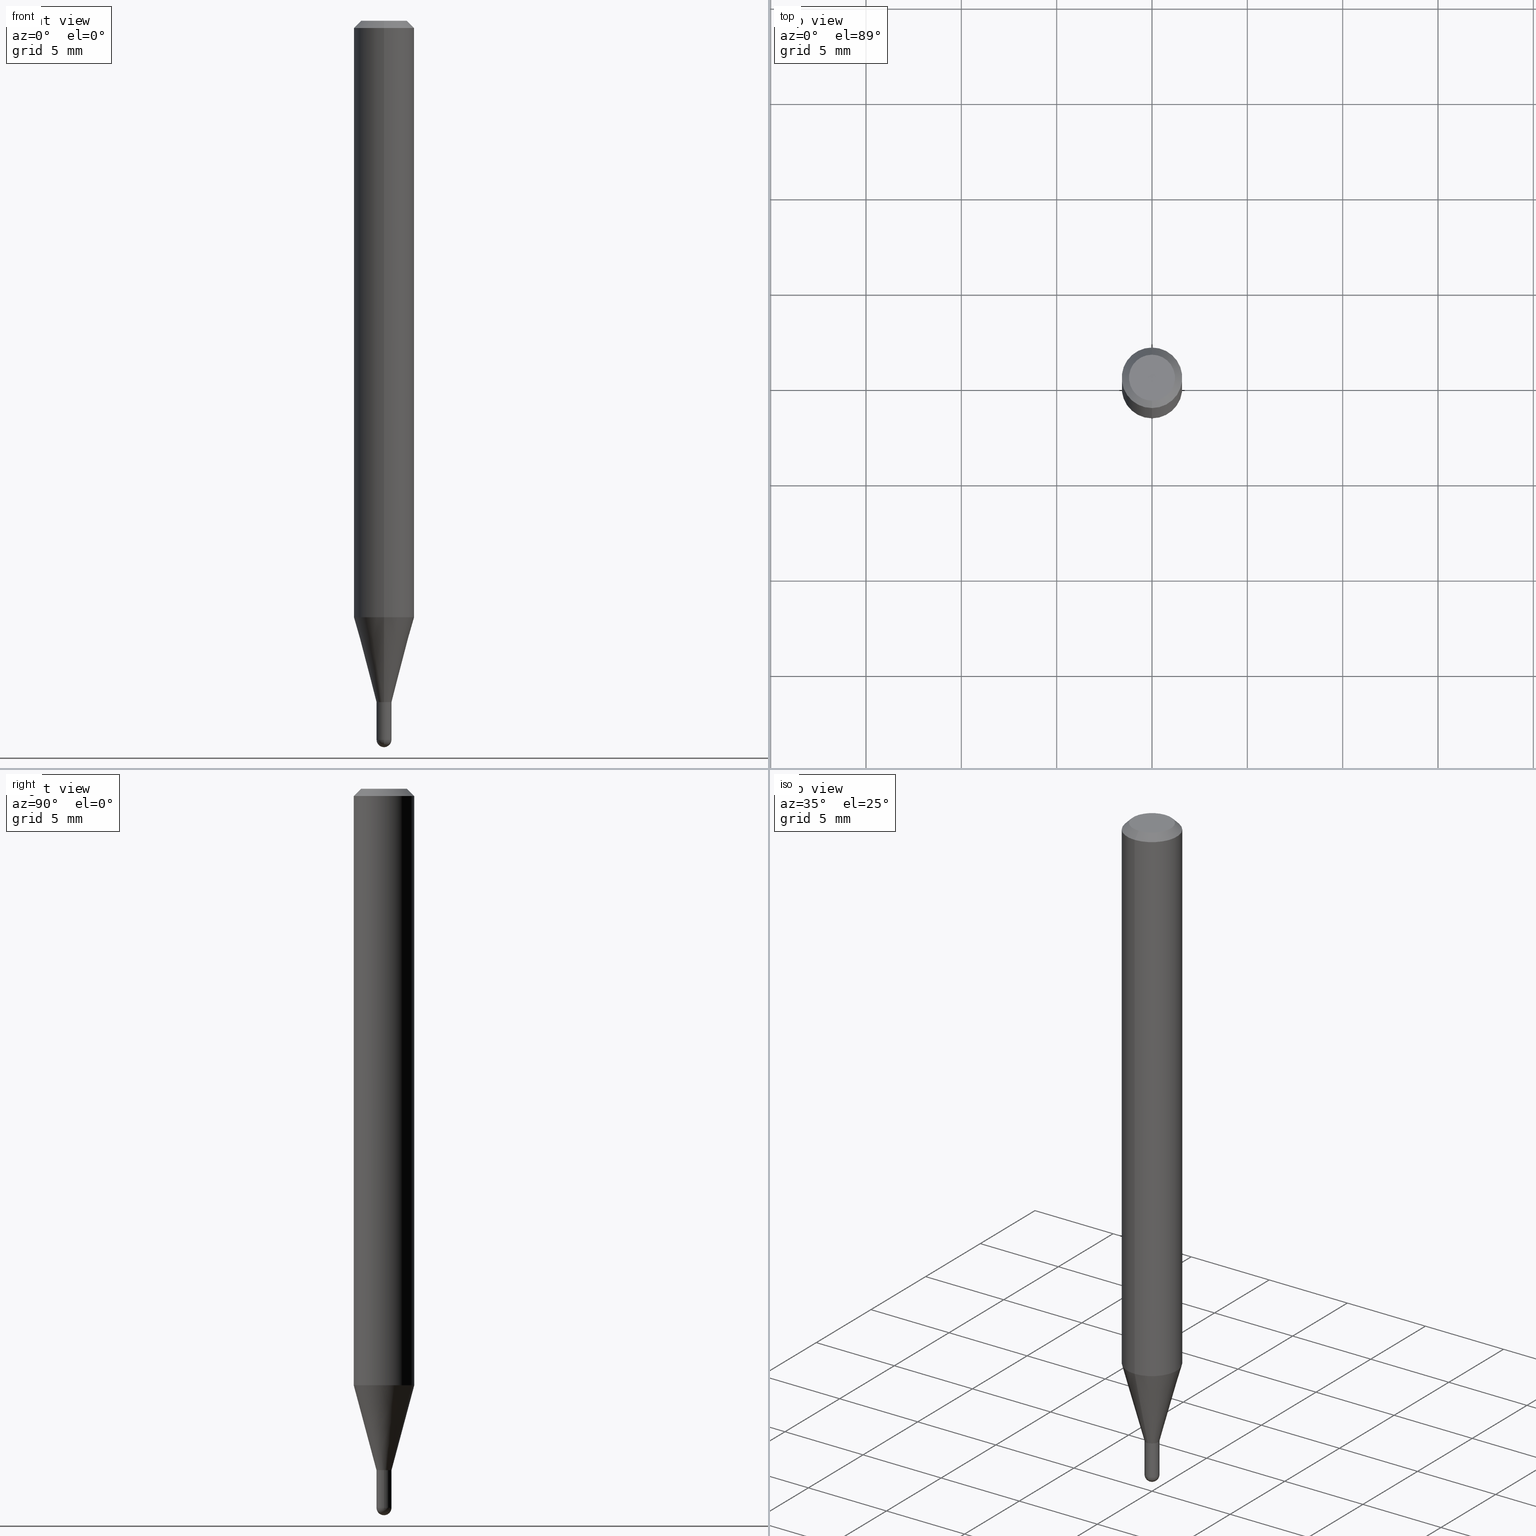
[diagram: canonical four-view strip — front | top / right | iso, engineering-drawing reading convention]
A machine part, canonical four-view strip (front | top / right | iso — engineering-drawing reading convention). The complete STEP part file that produces these views, byte-faithful:
ISO-10303-21;
HEADER;
FILE_DESCRIPTION (( 'STEP AP203' ),
    '1' );
FILE_NAME ('04409.STEP',
    '2024-03-08T19:15:48',
    ( '' ),
    ( '' ),
    'SwSTEP 2.0',
    'SolidWorks 2023',
    '' );
FILE_SCHEMA (( 'CONFIG_CONTROL_DESIGN' ));
ENDSEC;

DATA;
#1 = EDGE_CURVE ( 'NONE', #258, #51, #279, .T. ) ;
#2 = LINE ( 'NONE', #372, #64 ) ;
#3 = UNCERTAINTY_MEASURE_WITH_UNIT (LENGTH_MEASURE( 1.000000000000000082E-05 ), #33, 'distance_accuracy_value', 'NONE');
#4 = APPLICATION_PROTOCOL_DEFINITION ( 'international standard', 'config_control_design', 1994, #39 ) ;
#5 = CIRCLE ( 'NONE', #308, 0.01549999999999999989 ) ;
#6 = DIRECTION ( 'NONE',  ( -2.445473868561533157E-29, 3.491474089232013110E-15, 1.000000000000000000 ) ) ;
#7 = AXIS2_PLACEMENT_3D ( 'NONE', #334, #289, #330 ) ;
#8 = ORIENTED_EDGE ( 'NONE', *, *, #49, .F. ) ;
#9 = MANIFOLD_SOLID_BREP ( 'Body-Move/Copy2[2]', #504 ) ;
#10 = DIRECTION ( 'NONE',  ( -6.982962677686265922E-15, -1.000000000000000000, 0.000000000000000000 ) ) ;
#11 = DIRECTION ( 'NONE',  ( -2.445473868561533157E-29, 3.491474089232013110E-15, 1.000000000000000000 ) ) ;
#12 = ORIENTED_EDGE ( 'NONE', *, *, #286, .F. ) ;
#13 = EDGE_LOOP ( 'NONE', ( #150, #259, #301, #445, #158 ) ) ;
#14 = ORIENTED_EDGE ( 'NONE', *, *, #412, .F. ) ;
#15 = EDGE_CURVE ( 'NONE', #281, #214, #443, .T. ) ;
#16 = CIRCLE ( 'NONE', #436, 0.06250000000000000000 ) ;
#17 = DIRECTION ( 'NONE',  ( -2.445468806185136877E-29, 3.491481338843145188E-15, 1.000000000000000000 ) ) ;
#18 = VERTEX_POINT ( 'NONE', #293 ) ;
#19 = EDGE_CURVE ( 'NONE', #480, #134, #2, .T. ) ;
#20 = CALENDAR_DATE ( 2024, 8, 3 ) ;
#21 = VECTOR ( 'NONE', #163, 39.37007874015748143 ) ;
#22 = CARTESIAN_POINT ( 'NONE',  ( 1.082359215041715180E-16, 0.01549999999999508715, -1.407000000000000028 ) ) ;
#23 = DIRECTION ( 'NONE',  ( -2.445473868561533157E-29, 3.491474089232013110E-15, 1.000000000000000000 ) ) ;
#24 = DIRECTION ( 'NONE',  ( -6.982962677686265922E-15, -1.000000000000000000, 3.491474089232012716E-15 ) ) ;
#25 = LOCAL_TIME ( 14, 15, 48.00000000000000000, #152 ) ;
#26 = FACE_OUTER_BOUND ( 'NONE', #147, .T. ) ;
#27 = ORIENTED_EDGE ( 'NONE', *, *, #94, .F. ) ;
#28 = FACE_OUTER_BOUND ( 'NONE', #41, .T. ) ;
#29 = FACE_OUTER_BOUND ( 'NONE', #287, .T. ) ;
#30 = DIRECTION ( 'NONE',  ( -2.445473868561533157E-29, 3.491474089232013110E-15, 1.000000000000000000 ) ) ;
#31 = ADVANCED_FACE ( 'NONE', ( #166 ), #40, .T. ) ;
#32 = DATE_TIME_ROLE ( 'creation_date' ) ;
#33 =( CONVERSION_BASED_UNIT ( 'INCH', #118 ) LENGTH_UNIT ( ) NAMED_UNIT ( #345 ) );
#34 = DIRECTION ( 'NONE',  ( -1.000000000000000000, 6.982962677686265922E-15, -4.883557194083112340E-29 ) ) ;
#35 = CARTESIAN_POINT ( 'NONE',  ( 1.101341240428470701E-16, 0.01549999999999468643, -1.406500000000000083 ) ) ;
#36 = CC_DESIGN_DATE_AND_TIME_ASSIGNMENT ( #265, #32, ( #421 ) ) ;
#37 = LINE ( 'NONE', #120, #142 ) ;
#38 = CARTESIAN_POINT ( 'NONE',  ( 4.440892098500924943E-16, 0.06249999999999567707, -1.231593612044269426 ) ) ;
#39 = APPLICATION_CONTEXT ( 'configuration controlled 3d designs of mechanical parts and assemblies' ) ;
#40 = SPHERICAL_SURFACE ( 'NONE', #43, 0.01549999999999993917 ) ;
#41 = EDGE_LOOP ( 'NONE', ( #58, #222, #92, #90 ) ) ;
#42 = AXIS2_PLACEMENT_3D ( 'NONE', #83, #6, #338 ) ;
#43 = AXIS2_PLACEMENT_3D ( 'NONE', #357, #373, #368 ) ;
#44 = CARTESIAN_POINT ( 'NONE',  ( 0.01549999999999999989, -5.156045067136614711E-15, -1.484500000000000597 ) ) ;
#45 = APPROVAL_STATUS ( 'not_yet_approved' ) ;
#46 = DIRECTION ( 'NONE',  ( -4.937700262161976356E-15, -0.7071067811861768693, 0.7071067811869181652 ) ) ;
#47 = ORIENTED_EDGE ( 'NONE', *, *, #137, .F. ) ;
#48 = DESIGN_CONTEXT ( 'detailed design', #228, 'design' ) ;
#49 = EDGE_CURVE ( 'NONE', #383, #196, #364, .T. ) ;
#50 = CARTESIAN_POINT ( 'NONE',  ( 0.01549999999999999989, -1.082359215041371286E-16, 7.558074002483699918E-31 ) ) ;
#51 = VERTEX_POINT ( 'NONE', #198 ) ;
#52 = ORIENTED_EDGE ( 'NONE', *, *, #510, .F. ) ;
#53 = CONICAL_SURFACE ( 'NONE', #263, 0.06250000000000000000, 0.7853981633974483900 ) ;
#54 = CARTESIAN_POINT ( 'NONE',  ( -0.01549999999999999989, 1.101341240428155280E-16, -7.624349389895103058E-31 ) ) ;
#55 = CARTESIAN_POINT ( 'NONE',  ( 3.840629472727447874E-16, 0.04749999999999999362, -2.313455976474456035E-16 ) ) ;
#56 = ORIENTED_EDGE ( 'NONE', *, *, #312, .F. ) ;
#57 = ORIENTED_EDGE ( 'NONE', *, *, #393, .F. ) ;
#58 = ORIENTED_EDGE ( 'NONE', *, *, #218, .F. ) ;
#59 = PERSON_AND_ORGANIZATION ( #386, #105 ) ;
#60 = ADVANCED_FACE ( 'NONE', ( #242 ), #432, .T. ) ;
#61 = CC_DESIGN_PERSON_AND_ORGANIZATION_ASSIGNMENT ( #305, #236, ( #264 ) ) ;
#62 = DATE_AND_TIME ( #419, #114 ) ;
#63 = PERSON_AND_ORGANIZATION_ROLE ( 'creator' ) ;
#64 = VECTOR ( 'NONE', #30, 39.37007874015748143 ) ;
#65 = VECTOR ( 'NONE', #46, 39.37007874015748143 ) ;
#66 = CC_DESIGN_APPROVAL ( #241, ( #264 ) ) ;
#67 = SECURITY_CLASSIFICATION_LEVEL ( 'unclassified' ) ;
#68 = EDGE_CURVE ( 'NONE', #480, #490, #37, .T. ) ;
#69 = FACE_OUTER_BOUND ( 'NONE', #276, .T. ) ;
#70 = DIRECTION ( 'NONE',  ( 1.000000000000000000, -7.105427357601001070E-15, 4.926315508542082329E-29 ) ) ;
#71 = PLANE ( 'NONE',  #186 ) ;
#72 = AXIS2_PLACEMENT_3D ( 'NONE', #278, #429, #298 ) ;
#73 = DIRECTION ( 'NONE',  ( -2.445473868561533157E-29, 3.491474089232013110E-15, 1.000000000000000000 ) ) ;
#74 = PERSON_AND_ORGANIZATION ( #386, #105 ) ;
#75 = DIRECTION ( 'NONE',  ( 6.982962677686265922E-15, 1.000000000000000000, -3.483106191921935554E-15 ) ) ;
#76 = DIRECTION ( 'NONE',  ( -2.445468806185136597E-29, 3.491481338843145583E-15, 1.000000000000000000 ) ) ;
#77 = DIRECTION ( 'NONE',  ( -2.445473868561533157E-29, 3.491474089232013110E-15, 1.000000000000000000 ) ) ;
#78 = DIRECTION ( 'NONE',  ( -2.445473868561533157E-29, 3.491474089232013110E-15, 1.000000000000000000 ) ) ;
#79 = VECTOR ( 'NONE', #501, 39.37007874015748143 ) ;
#80 = EDGE_CURVE ( 'NONE', #347, #91, #131, .T. ) ;
#81 = PRODUCT_DEFINITION_FORMATION_WITH_SPECIFIED_SOURCE ( 'ANY', '', #103, .NOT_KNOWN. ) ;
#82 = ORIENTED_EDGE ( 'NONE', *, *, #266, .F. ) ;
#83 = CARTESIAN_POINT ( 'NONE',  ( 3.439558996131796120E-29, -4.910758306504827569E-15, -1.406500000000000083 ) ) ;
#84 = CARTESIAN_POINT ( 'NONE',  ( 1.101341240428149734E-16, 0.01549999999999992530, -5.411784838309594037E-17 ) ) ;
#85 = ORIENTED_EDGE ( 'NONE', *, *, #389, .F. ) ;
#86 = ORIENTED_EDGE ( 'NONE', *, *, #355, .F. ) ;
#87 = PERSON_AND_ORGANIZATION_ROLE ( 'design_owner' ) ;
#88 = CIRCLE ( 'NONE', #97, 0.01549999999999999989 ) ;
#89 = CARTESIAN_POINT ( 'NONE',  ( 4.440892098500928887E-16, 0.06249999999999995143, -0.01500000000000028394 ) ) ;
#90 = ORIENTED_EDGE ( 'NONE', *, *, #286, .T. ) ;
#91 = VERTEX_POINT ( 'NONE', #156 ) ;
#92 = ORIENTED_EDGE ( 'NONE', *, *, #19, .T. ) ;
#93 = ORIENTED_EDGE ( 'NONE', *, *, #452, .F. ) ;
#94 = EDGE_CURVE ( 'NONE', #207, #268, #168, .T. ) ;
#95 = CARTESIAN_POINT ( 'NONE',  ( -0.01549999999999999989, -4.937675021589663102E-15, -1.484500000000000597 ) ) ;
#96 = ADVANCED_FACE ( 'NONE', ( #400 ), #233, .T. ) ;
#97 = AXIS2_PLACEMENT_3D ( 'NONE', #200, #365, #157 ) ;
#98 = PERSON_AND_ORGANIZATION ( #386, #105 ) ;
#99 = AXIS2_PLACEMENT_3D ( 'NONE', #326, #123, #160 ) ;
#100 = ORIENTED_EDGE ( 'NONE', *, *, #15, .T. ) ;
#101 = PERSON_AND_ORGANIZATION ( #386, #105 ) ;
#102 = COORDINATED_UNIVERSAL_TIME_OFFSET ( 5, 0, .BEHIND. ) ;
#103 = PRODUCT ( '04409', '04409', '', ( #129 ) ) ;
#104 = CIRCLE ( 'NONE', #477, 0.01499999999999999944 ) ;
#105 = ORGANIZATION ( 'UNSPECIFIED', 'UNSPECIFIED', '' ) ;
#106 = FACE_OUTER_BOUND ( 'NONE', #209, .T. ) ;
#107 = CARTESIAN_POINT ( 'NONE',  ( 1.065814103640494257E-16, 0.01499999999999508671, -1.407000000000000250 ) ) ;
#108 = DIRECTION ( 'NONE',  ( -6.982962677686265922E-15, -1.000000000000000000, 3.491474089232013110E-15 ) ) ;
#109 = DIRECTION ( 'NONE',  ( -1.000000000000000000, 6.982962677686265922E-15, -4.876176775795935793E-29 ) ) ;
#110 = LINE ( 'NONE', #404, #238 ) ;
#111 = CYLINDRICAL_SURFACE ( 'NONE', #72, 0.01549999999999999989 ) ;
#112 = VECTOR ( 'NONE', #17, 39.37007874015748143 ) ;
#113 = DIRECTION ( 'NONE',  ( 1.000000000000000000, -6.982962677686238312E-15, 0.000000000000000000 ) ) ;
#114 = LOCAL_TIME ( 14, 15, 48.00000000000000000, #102 ) ;
#115 = COORDINATED_UNIVERSAL_TIME_OFFSET ( 5, 0, .BEHIND. ) ;
#116 = CC_DESIGN_PERSON_AND_ORGANIZATION_ASSIGNMENT ( #136, #87, ( #103 ) ) ;
#117 = FACE_OUTER_BOUND ( 'NONE', #176, .T. ) ;
#118 = LENGTH_MEASURE_WITH_UNIT ( LENGTH_MEASURE( 0.02539999999999999897 ), #358 );
#119 = DIRECTION ( 'NONE',  ( -2.445468806185136597E-29, 3.491481338843145583E-15, 1.000000000000000000 ) ) ;
#120 = CARTESIAN_POINT ( 'NONE',  ( -1.082359215041040950E-16, -0.01550000000000511038, -1.407000000000000028 ) ) ;
#121 = PLANE ( 'NONE',  #457 ) ;
#122 =( NAMED_UNIT ( * ) SI_UNIT ( $, .STERADIAN. ) SOLID_ANGLE_UNIT ( ) );
#123 = DIRECTION ( 'NONE',  ( -2.445473868561533157E-29, 3.491474089232013110E-15, 1.000000000000000000 ) ) ;
#124 = DIRECTION ( 'NONE',  ( -6.982962677686266711E-15, -1.000000000000000000, 0.000000000000000000 ) ) ;
#125 = DIRECTION ( 'NONE',  ( -6.982962677686265922E-15, -1.000000000000000000, 3.491474089232012716E-15 ) ) ;
#126 = DIRECTION ( 'NONE',  ( -6.982962677686265922E-15, -1.000000000000000000, 0.000000000000000000 ) ) ;
#127 = EDGE_CURVE ( 'NONE', #145, #383, #462, .T. ) ;
#128 = AXIS2_PLACEMENT_3D ( 'NONE', #323, #70, #459 ) ;
#129 = MECHANICAL_CONTEXT ( 'NONE', #39, 'mechanical' ) ;
#130 = AXIS2_PLACEMENT_3D ( 'NONE', #422, #500, #320 ) ;
#131 = CIRCLE ( 'NONE', #257, 0.01499999999999999944 ) ;
#132 = CARTESIAN_POINT ( 'NONE',  ( 3.440781733066078440E-29, -4.912504043549442679E-15, -1.407000000000000250 ) ) ;
#133 = DIRECTION ( 'NONE',  ( 1.000000000000000000, -6.982962677686238312E-15, 0.000000000000000000 ) ) ;
#134 = VERTEX_POINT ( 'NONE', #240 ) ;
#135 = ORIENTED_EDGE ( 'NONE', *, *, #218, .T. ) ;
#136 = PERSON_AND_ORGANIZATION ( #386, #105 ) ;
#137 = EDGE_CURVE ( 'NONE', #18, #184, #455, .T. ) ;
#138 = FACE_OUTER_BOUND ( 'NONE', #474, .T. ) ;
#139 = ORIENTED_EDGE ( 'NONE', *, *, #174, .T. ) ;
#140 = ORIENTED_EDGE ( 'NONE', *, *, #1, .F. ) ;
#141 = DIRECTION ( 'NONE',  ( 1.000000000000000000, 0.000000000000000000, 0.000000000000000000 ) ) ;
#142 = VECTOR ( 'NONE', #465, 39.37007874015748854 ) ;
#143 = AXIS2_PLACEMENT_3D ( 'NONE', #381, #374, #179 ) ;
#144 = AXIS2_PLACEMENT_3D ( 'NONE', #154, #282, #24 ) ;
#145 = VERTEX_POINT ( 'NONE', #319 ) ;
#146 = ADVANCED_BREP_SHAPE_REPRESENTATION ( '04409', ( #361, #9, #506 ), #493 ) ;
#147 = EDGE_LOOP ( 'NONE', ( #321, #300, #336, #57 ) ) ;
#148 = ORIENTED_EDGE ( 'NONE', *, *, #495, .T. ) ;
#149 = CARTESIAN_POINT ( 'NONE',  ( -4.364351673553912750E-16, -0.06250000000000005551, -0.01499999999999984852 ) ) ;
#150 = ORIENTED_EDGE ( 'NONE', *, *, #137, .T. ) ;
#151 = VECTOR ( 'NONE', #379, 39.37007874015748143 ) ;
#152 = COORDINATED_UNIVERSAL_TIME_OFFSET ( 5, 0, .BEHIND. ) ;
#153 = CARTESIAN_POINT ( 'NONE',  ( -4.364351673553916201E-16, -0.06250000000000000000, 2.182171305770007947E-16 ) ) ;
#154 = CARTESIAN_POINT ( 'NONE',  ( 0.000000000000000000, 0.000000000000000000, 0.000000000000000000 ) ) ;
#155 = ORIENTED_EDGE ( 'NONE', *, *, #80, .T. ) ;
#156 = CARTESIAN_POINT ( 'NONE',  ( -1.047444401652595841E-16, -0.01500000000000491392, -1.407000000000000250 ) ) ;
#157 = DIRECTION ( 'NONE',  ( 1.000000000000000000, -6.982962677686238312E-15, 0.000000000000000000 ) ) ;
#158 = ORIENTED_EDGE ( 'NONE', *, *, #452, .T. ) ;
#159 = CLOSED_SHELL ( 'NONE', ( #167, #60, #423, #31, #256 ) ) ;
#160 = DIRECTION ( 'NONE',  ( -6.982962677686265922E-15, -1.000000000000000000, 3.483106191921935554E-15 ) ) ;
#161 = PLANE ( 'NONE',  #342 ) ;
#162 = ORIENTED_EDGE ( 'NONE', *, *, #296, .T. ) ;
#163 = DIRECTION ( 'NONE',  ( -4.851104656540964275E-15, -0.7071067811865500152, -0.7071067811865450192 ) ) ;
#164 = CARTESIAN_POINT ( 'NONE',  ( 0.000000000000000000, 0.000000000000000000, 0.000000000000000000 ) ) ;
#165 = CYLINDRICAL_SURFACE ( 'NONE', #288, 0.01549999999999992530 ) ;
#166 = FACE_OUTER_BOUND ( 'NONE', #440, .T. ) ;
#167 = ADVANCED_FACE ( 'NONE', ( #460 ), #111, .T. ) ;
#168 = LINE ( 'NONE', #324, #392 ) ;
#169 = AXIS2_PLACEMENT_3D ( 'NONE', #332, #469, #170 ) ;
#170 = DIRECTION ( 'NONE',  ( -6.982962677686266711E-15, -1.000000000000000000, 3.491474089232013505E-15 ) ) ;
#171 = VERTEX_POINT ( 'NONE', #479 ) ;
#172 = ORIENTED_EDGE ( 'NONE', *, *, #296, .F. ) ;
#173 = ORIENTED_EDGE ( 'NONE', *, *, #19, .F. ) ;
#174 = EDGE_CURVE ( 'NONE', #196, #51, #406, .T. ) ;
#175 = DIRECTION ( 'NONE',  ( -6.982962677686265922E-15, -1.000000000000000000, 4.370956789862821150E-15 ) ) ;
#176 = EDGE_LOOP ( 'NONE', ( #27, #211, #376, #235 ) ) ;
#177 = ORIENTED_EDGE ( 'NONE', *, *, #481, .F. ) ;
#178 = CIRCLE ( 'NONE', #128, 0.01549999999999993917 ) ;
#179 = DIRECTION ( 'NONE',  ( -6.982962677686265922E-15, -1.000000000000000000, 4.370956789862821150E-15 ) ) ;
#180 = EDGE_CURVE ( 'NONE', #480, #207, #366, .T. ) ;
#181 = ORIENTED_EDGE ( 'NONE', *, *, #127, .F. ) ;
#182 = ORIENTED_EDGE ( 'NONE', *, *, #270, .F. ) ;
#183 = FACE_OUTER_BOUND ( 'NONE', #340, .T. ) ;
#184 = VERTEX_POINT ( 'NONE', #95 ) ;
#185 = APPROVAL_ROLE ( '' ) ;
#186 = AXIS2_PLACEMENT_3D ( 'NONE', #231, #394, #318 ) ;
#187 = CALENDAR_DATE ( 2024, 8, 3 ) ;
#188 = LOCAL_TIME ( 14, 15, 48.00000000000000000, #456 ) ;
#189 = AXIS2_PLACEMENT_3D ( 'NONE', #438, #399, #133 ) ;
#190 = CARTESIAN_POINT ( 'NONE',  ( 3.316907271900976096E-16, 0.04749999999999999362, -1.985953084429831200E-16 ) ) ;
#191 = DIRECTION ( 'NONE',  ( -6.982962677686265922E-15, -1.000000000000000000, 0.000000000000000000 ) ) ;
#192 = CC_DESIGN_SECURITY_CLASSIFICATION ( #264, ( #81 ) ) ;
#193 = CARTESIAN_POINT ( 'NONE',  ( 3.440781733066077319E-29, -4.912504043549441891E-15, -1.407000000000000028 ) ) ;
#194 = CC_DESIGN_PERSON_AND_ORGANIZATION_ASSIGNMENT ( #59, #63, ( #81 ) ) ;
#195 = CARTESIAN_POINT ( 'NONE',  ( 0.000000000000000000, 0.000000000000000000, 0.000000000000000000 ) ) ;
#196 = VERTEX_POINT ( 'NONE', #44 ) ;
#197 = PERSON_AND_ORGANIZATION_ROLE ( 'creator' ) ;
#198 = CARTESIAN_POINT ( 'NONE',  ( 0.01549999999999999989, -5.020750165256442268E-15, -1.407000000000000028 ) ) ;
#199 = CYLINDRICAL_SURFACE ( 'NONE', #144, 0.06250000000000000000 ) ;
#200 = CARTESIAN_POINT ( 'NONE',  ( 3.440774610302487541E-29, -4.912514243752305891E-15, -1.407000000000000028 ) ) ;
#201 = AXIS2_PLACEMENT_3D ( 'NONE', #497, #77, #509 ) ;
#202 = FACE_OUTER_BOUND ( 'NONE', #250, .T. ) ;
#203 = DIRECTION ( 'NONE',  ( -6.982962677686265922E-15, -1.000000000000000000, 0.000000000000000000 ) ) ;
#204 = AXIS2_PLACEMENT_3D ( 'NONE', #195, #119, #272 ) ;
#205 = CC_DESIGN_APPROVAL ( #283, ( #421 ) ) ;
#206 = ADVANCED_FACE ( 'NONE', ( #183 ), #375, .T. ) ;
#207 = VERTEX_POINT ( 'NONE', #413 ) ;
#208 = CC_DESIGN_PERSON_AND_ORGANIZATION_ASSIGNMENT ( #491, #350, ( #81 ) ) ;
#209 = EDGE_LOOP ( 'NONE', ( #507, #484 ) ) ;
#210 = DIRECTION ( 'NONE',  ( -2.445473868561533157E-29, 3.491474089232013110E-15, 1.000000000000000000 ) ) ;
#211 = ORIENTED_EDGE ( 'NONE', *, *, #481, .T. ) ;
#212 = VERTEX_POINT ( 'NONE', #55 ) ;
#213 = APPROVAL ( #322, 'UNSPECIFIED' ) ;
#214 = VERTEX_POINT ( 'NONE', #149 ) ;
#215 = CARTESIAN_POINT ( 'NONE',  ( 3.439558996131796120E-29, -4.910758306504827569E-15, -1.406500000000000083 ) ) ;
#216 = LINE ( 'NONE', #54, #151 ) ;
#217 = PRODUCT_DEFINITION_SHAPE ( 'NONE', 'NONE',  #421 ) ;
#218 = EDGE_CURVE ( 'NONE', #207, #464, #306, .T. ) ;
#219 = DIRECTION ( 'NONE',  ( -2.445473868561533157E-29, 3.491474089232013110E-15, 1.000000000000000000 ) ) ;
#220 = EDGE_LOOP ( 'NONE', ( #498, #447 ) ) ;
#221 = CIRCLE ( 'NONE', #169, 0.04749999999999999362 ) ;
#222 = ORIENTED_EDGE ( 'NONE', *, *, #180, .F. ) ;
#223 = EDGE_CURVE ( 'NONE', #184, #258, #216, .T. ) ;
#224 = AXIS2_PLACEMENT_3D ( 'NONE', #377, #11, #339 ) ;
#225 = CC_DESIGN_DATE_AND_TIME_ASSIGNMENT ( #431, #453, ( #264 ) ) ;
#226 = APPROVAL_DATE_TIME ( #62, #283 ) ;
#227 = DIRECTION ( 'NONE',  ( 6.982962677686265922E-15, 1.000000000000000000, -3.491474089232013110E-15 ) ) ;
#228 = APPLICATION_CONTEXT ( 'configuration controlled 3d designs of mechanical parts and assemblies' ) ;
#229 = CARTESIAN_POINT ( 'NONE',  ( 0.000000000000000000, 0.000000000000000000, 0.000000000000000000 ) ) ;
#230 = CONICAL_SURFACE ( 'NONE', #444, 0.01550000000000019765, 0.2617993877991574569 ) ;
#231 = CARTESIAN_POINT ( 'NONE',  ( 3.440781733066077319E-29, -4.912504043549441891E-15, -1.407000000000000028 ) ) ;
#232 = CARTESIAN_POINT ( 'NONE',  ( 3.628972935033607816E-29, -5.185002250051328055E-15, -1.484500000000000153 ) ) ;
#233 = CONICAL_SURFACE ( 'NONE', #488, 0.06250000000000000000, 0.7853981633974483900 ) ;
#234 = CARTESIAN_POINT ( 'NONE',  ( -4.364351673553616434E-16, -0.06250000000000431599, -1.231593612044268982 ) ) ;
#235 = ORIENTED_EDGE ( 'NONE', *, *, #304, .F. ) ;
#236 = PERSON_AND_ORGANIZATION_ROLE ( 'classification_officer' ) ;
#237 = DIRECTION ( 'NONE',  ( -2.445473868561533157E-29, 3.491474089232013110E-15, 1.000000000000000000 ) ) ;
#238 = VECTOR ( 'NONE', #512, 39.37007874015748143 ) ;
#239 = CARTESIAN_POINT ( 'NONE',  ( -0.01549999999999999989, -4.937675021589663102E-15, -1.407000000000000028 ) ) ;
#240 = CARTESIAN_POINT ( 'NONE',  ( -1.082359215041006561E-16, -0.01550000000000461599, -1.406500000000000083 ) ) ;
#241 = APPROVAL ( #385, 'UNSPECIFIED' ) ;
#242 = FACE_OUTER_BOUND ( 'NONE', #409, .T. ) ;
#243 = CARTESIAN_POINT ( 'NONE',  ( 0.000000000000000000, 0.000000000000000000, 0.000000000000000000 ) ) ;
#244 = ADVANCED_FACE ( 'NONE', ( #28 ), #370, .F. ) ;
#245 = DIRECTION ( 'NONE',  ( -6.982962677686265922E-15, -1.000000000000000000, 0.000000000000000000 ) ) ;
#246 = LINE ( 'NONE', #450, #65 ) ;
#247 = AXIS2_PLACEMENT_3D ( 'NONE', #253, #219, #451 ) ;
#248 = APPLICATION_PROTOCOL_DEFINITION ( 'international standard', 'config_control_design', 1994, #228 ) ;
#249 = AXIS2_PLACEMENT_3D ( 'NONE', #232, #34, #203 ) ;
#250 = EDGE_LOOP ( 'NONE', ( #307, #148, #449, #139, #140 ) ) ;
#251 = CARTESIAN_POINT ( 'NONE',  ( 3.011829994941570979E-29, -4.300077184916230038E-15, -1.231593612044269204 ) ) ;
#252 = ORIENTED_EDGE ( 'NONE', *, *, #314, .T. ) ;
#253 = CARTESIAN_POINT ( 'NONE',  ( 3.440781733066077319E-29, -4.912504043549441891E-15, -1.407000000000000028 ) ) ;
#254 = AXIS2_PLACEMENT_3D ( 'NONE', #215, #341, #10 ) ;
#255 = APPROVAL_PERSON_ORGANIZATION ( #101, #213, #260 ) ;
#256 = ADVANCED_FACE ( 'NONE', ( #202 ), #367, .T. ) ;
#257 = AXIS2_PLACEMENT_3D ( 'NONE', #362, #78, #499 ) ;
#258 = VERTEX_POINT ( 'NONE', #239 ) ;
#259 = ORIENTED_EDGE ( 'NONE', *, *, #223, .T. ) ;
#260 = APPROVAL_ROLE ( '' ) ;
#261 = ADVANCED_FACE ( 'NONE', ( #425 ), #71, .F. ) ;
#262 = CALENDAR_DATE ( 2024, 8, 3 ) ;
#263 = AXIS2_PLACEMENT_3D ( 'NONE', #277, #502, #434 ) ;
#264 = SECURITY_CLASSIFICATION ( '', '', #67 ) ;
#265 = DATE_AND_TIME ( #20, #407 ) ;
#266 = EDGE_CURVE ( 'NONE', #212, #281, #110, .T. ) ;
#267 =( NAMED_UNIT ( * ) PLANE_ANGLE_UNIT ( ) SI_UNIT ( $, .RADIAN. ) );
#268 = VERTEX_POINT ( 'NONE', #38 ) ;
#269 = FACE_OUTER_BOUND ( 'NONE', #416, .T. ) ;
#270 = EDGE_CURVE ( 'NONE', #91, #134, #246, .T. ) ;
#271 = CARTESIAN_POINT ( 'NONE',  ( 4.440892098500625669E-16, 0.06250000000000000000, -2.182171305770007947E-16 ) ) ;
#272 = DIRECTION ( 'NONE',  ( 1.000000000000000000, -6.982962677686266711E-15, 4.876176775795935232E-29 ) ) ;
#273 = LINE ( 'NONE', #426, #21 ) ;
#274 = CIRCLE ( 'NONE', #254, 0.01549999999999965121 ) ;
#275 = AXIS2_PLACEMENT_3D ( 'NONE', #193, #327, #496 ) ;
#276 = EDGE_LOOP ( 'NONE', ( #85, #476, #410, #294 ) ) ;
#277 = CARTESIAN_POINT ( 'NONE',  ( 3.668210802842315763E-31, -5.237211133848042937E-17, -0.01500000000000006710 ) ) ;
#278 = CARTESIAN_POINT ( 'NONE',  ( 0.000000000000000000, 0.000000000000000000, 0.000000000000000000 ) ) ;
#279 = CIRCLE ( 'NONE', #189, 0.01549999999999999989 ) ;
#280 = CARTESIAN_POINT ( 'NONE',  ( 3.440781733066077319E-29, -4.912504043549441891E-15, -1.407000000000000028 ) ) ;
#281 = VERTEX_POINT ( 'NONE', #89 ) ;
#282 = DIRECTION ( 'NONE',  ( -2.445473868561533157E-29, 3.491474089232013110E-15, 1.000000000000000000 ) ) ;
#283 = APPROVAL ( #45, 'UNSPECIFIED' ) ;
#284 = ORIENTED_EDGE ( 'NONE', *, *, #312, .T. ) ;
#285 = DIRECTION ( 'NONE',  ( 2.445473868561532877E-29, -3.491474089232013110E-15, -1.000000000000000000 ) ) ;
#286 = EDGE_CURVE ( 'NONE', #134, #464, #274, .T. ) ;
#287 = EDGE_LOOP ( 'NONE', ( #177, #135, #162, #173 ) ) ;
#288 = AXIS2_PLACEMENT_3D ( 'NONE', #390, #23, #315 ) ;
#289 = DIRECTION ( 'NONE',  ( -2.445468806185136597E-29, 3.491481338843145583E-15, 1.000000000000000000 ) ) ;
#290 = APPROVAL_PERSON_ORGANIZATION ( #408, #283, #483 ) ;
#291 = EDGE_CURVE ( 'NONE', #490, #268, #16, .T. ) ;
#292 = DIRECTION ( 'NONE',  ( -2.445473868561533157E-29, 3.491474089232013110E-15, 1.000000000000000000 ) ) ;
#293 = CARTESIAN_POINT ( 'NONE',  ( 1.101341240428515814E-16, 0.01549999999999478531, -1.484500000000000597 ) ) ;
#294 = ORIENTED_EDGE ( 'NONE', *, *, #15, .F. ) ;
#295 = DIRECTION ( 'NONE',  ( 0.000000000000000000, 0.000000000000000000, 1.000000000000000000 ) ) ;
#296 = EDGE_CURVE ( 'NONE', #464, #134, #414, .T. ) ;
#297 = DIRECTION ( 'NONE',  ( -2.445473868561533157E-29, 3.491474089232013110E-15, 1.000000000000000000 ) ) ;
#298 = DIRECTION ( 'NONE',  ( 1.000000000000000000, -6.982962677686266711E-15, 4.876176775795935232E-29 ) ) ;
#299 = ORIENTED_EDGE ( 'NONE', *, *, #68, .F. ) ;
#300 = ORIENTED_EDGE ( 'NONE', *, *, #389, .T. ) ;
#301 = ORIENTED_EDGE ( 'NONE', *, *, #402, .F. ) ;
#302 = APPROVAL_PERSON_ORGANIZATION ( #98, #241, #185 ) ;
#303 = EDGE_LOOP ( 'NONE', ( #380, #155, #356, #172 ) ) ;
#304 = EDGE_CURVE ( 'NONE', #268, #490, #461, .T. ) ;
#305 = PERSON_AND_ORGANIZATION ( #386, #105 ) ;
#306 = LINE ( 'NONE', #84, #427 ) ;
#307 = ORIENTED_EDGE ( 'NONE', *, *, #223, .F. ) ;
#308 = AXIS2_PLACEMENT_3D ( 'NONE', #391, #430, #113 ) ;
#309 = ORIENTED_EDGE ( 'NONE', *, *, #266, .T. ) ;
#310 = CALENDAR_DATE ( 2024, 8, 3 ) ;
#311 = DATE_AND_TIME ( #187, #25 ) ;
#312 = EDGE_CURVE ( 'NONE', #171, #212, #221, .T. ) ;
#313 = CONICAL_SURFACE ( 'NONE', #454, 0.01499999999999999944, 0.7853981633969275844 ) ;
#314 = EDGE_CURVE ( 'NONE', #91, #347, #104, .T. ) ;
#315 = DIRECTION ( 'NONE',  ( -6.982962677686265922E-15, -1.000000000000000000, 3.491474089232013110E-15 ) ) ;
#316 = CC_DESIGN_PERSON_AND_ORGANIZATION_ASSIGNMENT ( #74, #197, ( #421 ) ) ;
#317 = CARTESIAN_POINT ( 'NONE',  ( 3.440781733066078440E-29, -4.912504043549442679E-15, -1.407000000000000250 ) ) ;
#318 = DIRECTION ( 'NONE',  ( -6.982962677686265922E-15, -1.000000000000000000, 3.491474089232013110E-15 ) ) ;
#319 = CARTESIAN_POINT ( 'NONE',  ( 3.666214947655363055E-29, -5.240069312072735277E-15, -1.500000000000000222 ) ) ;
#320 = DIRECTION ( 'NONE',  ( -6.982962677686265922E-15, -1.000000000000000000, 3.483106191921935554E-15 ) ) ;
#321 = ORIENTED_EDGE ( 'NONE', *, *, #291, .T. ) ;
#322 = APPROVAL_STATUS ( 'not_yet_approved' ) ;
#323 = CARTESIAN_POINT ( 'NONE',  ( 3.628972935033607816E-29, -5.185002250051328055E-15, -1.484500000000000153 ) ) ;
#324 = CARTESIAN_POINT ( 'NONE',  ( 1.101341240428513349E-16, 0.01549999999999528491, -1.407000000000000028 ) ) ;
#325 = DIRECTION ( 'NONE',  ( -2.445473868561533157E-29, 3.491474089232013110E-15, 1.000000000000000000 ) ) ;
#326 = CARTESIAN_POINT ( 'NONE',  ( 3.668210802842315763E-31, -5.237211133848042937E-17, -0.01500000000000006710 ) ) ;
#327 = DIRECTION ( 'NONE',  ( -2.445473868561533157E-29, 3.491474089232013110E-15, 1.000000000000000000 ) ) ;
#328 = CARTESIAN_POINT ( 'NONE',  ( 1.083577672034482479E-16, 0.01499999999999508497, -1.407000000000000250 ) ) ;
#329 = ADVANCED_FACE ( 'NONE', ( #335 ), #468, .T. ) ;
#330 = DIRECTION ( 'NONE',  ( 1.000000000000000000, -6.982962677686238312E-15, 0.000000000000000000 ) ) ;
#331 = DIRECTION ( 'NONE',  ( -2.445473868561533157E-29, 3.491474089232013110E-15, 1.000000000000000000 ) ) ;
#332 = CARTESIAN_POINT ( 'NONE',  ( 1.601799528746918197E-45, -2.286935723444714811E-31, -6.550057840892499159E-17 ) ) ;
#333 = AXIS2_PLACEMENT_3D ( 'NONE', #473, #297, #475 ) ;
#334 = CARTESIAN_POINT ( 'NONE',  ( 3.630298442781836457E-29, -5.183104047512650777E-15, -1.484500000000000597 ) ) ;
#335 = FACE_OUTER_BOUND ( 'NONE', #403, .T. ) ;
#336 = ORIENTED_EDGE ( 'NONE', *, *, #466, .F. ) ;
#337 = ORIENTED_EDGE ( 'NONE', *, *, #355, .T. ) ;
#338 = DIRECTION ( 'NONE',  ( -6.982962677686265922E-15, -1.000000000000000000, 0.000000000000000000 ) ) ;
#339 = DIRECTION ( 'NONE',  ( -6.982962677686265922E-15, -1.000000000000000000, 0.000000000000000000 ) ) ;
#340 = EDGE_LOOP ( 'NONE', ( #252, #435, #12, #182 ) ) ;
#341 = DIRECTION ( 'NONE',  ( -2.445473868561533157E-29, 3.491474089232013110E-15, 1.000000000000000000 ) ) ;
#342 = AXIS2_PLACEMENT_3D ( 'NONE', #22, #492, #109 ) ;
#343 = ORIENTED_EDGE ( 'NONE', *, *, #127, .T. ) ;
#344 = ADVANCED_FACE ( 'NONE', ( #138 ), #53, .T. ) ;
#345 = DIMENSIONAL_EXPONENTS ( 1.000000000000000000, 0.000000000000000000, 0.000000000000000000, 0.000000000000000000, 0.000000000000000000, 0.000000000000000000, 0.000000000000000000 ) ;
#346 = ORIENTED_EDGE ( 'NONE', *, *, #180, .T. ) ;
#347 = VERTEX_POINT ( 'NONE', #328 ) ;
#348 = APPROVAL_DATE_TIME ( #351, #241 ) ;
#349 = AXIS2_PLACEMENT_3D ( 'NONE', #395, #467, #401 ) ;
#350 = PERSON_AND_ORGANIZATION_ROLE ( 'design_supplier' ) ;
#351 = DATE_AND_TIME ( #262, #188 ) ;
#352 = VECTOR ( 'NONE', #424, 39.37007874015748143 ) ;
#353 = AXIS2_PLACEMENT_3D ( 'NONE', #369, #76, #433 ) ;
#354 = LINE ( 'NONE', #271, #79 ) ;
#355 = EDGE_CURVE ( 'NONE', #212, #171, #478, .T. ) ;
#356 = ORIENTED_EDGE ( 'NONE', *, *, #270, .T. ) ;
#357 = CARTESIAN_POINT ( 'NONE',  ( 3.628972935033607816E-29, -5.185002250051328055E-15, -1.484500000000000153 ) ) ;
#358 =( LENGTH_UNIT ( ) NAMED_UNIT ( * ) SI_UNIT ( $, .METRE. ) );
#359 = ADVANCED_FACE ( 'NONE', ( #360 ), #313, .T. ) ;
#360 = FACE_OUTER_BOUND ( 'NONE', #303, .T. ) ;
#361 = MANIFOLD_SOLID_BREP ( 'Body-Move/Copy2[1]', #159 ) ;
#362 = CARTESIAN_POINT ( 'NONE',  ( 3.440781733066078440E-29, -4.912504043549442679E-15, -1.407000000000000250 ) ) ;
#363 = APPROVAL_DATE_TIME ( #311, #213 ) ;
#364 = CIRCLE ( 'NONE', #7, 0.01549999999999999989 ) ;
#365 = DIRECTION ( 'NONE',  ( -2.445468806185136597E-29, 3.491481338843145583E-15, 1.000000000000000000 ) ) ;
#366 = CIRCLE ( 'NONE', #247, 0.01550000000000019765 ) ;
#367 = CYLINDRICAL_SURFACE ( 'NONE', #204, 0.01549999999999999989 ) ;
#368 = DIRECTION ( 'NONE',  ( -6.982962677686265922E-15, -1.000000000000000000, 0.000000000000000000 ) ) ;
#369 = CARTESIAN_POINT ( 'NONE',  ( 3.630298442781836457E-29, -5.183104047512650777E-15, -1.484500000000000597 ) ) ;
#370 = CYLINDRICAL_SURFACE ( 'NONE', #486, 0.01549999999999992530 ) ;
#371 = ADVANCED_FACE ( 'NONE', ( #26 ), #437, .T. ) ;
#372 = CARTESIAN_POINT ( 'NONE',  ( -1.082359215041365986E-16, -0.01549999999999992530, 5.411784838309594037E-17 ) ) ;
#373 = DIRECTION ( 'NONE',  ( 1.000000000000000000, -6.982962677686265922E-15, 4.883557194083112340E-29 ) ) ;
#374 = DIRECTION ( 'NONE',  ( -2.445473868561533157E-29, 3.491474089232013110E-15, 1.000000000000000000 ) ) ;
#375 = CONICAL_SURFACE ( 'NONE', #224, 0.01499999999999999944, 0.7853981633969275844 ) ;
#376 = ORIENTED_EDGE ( 'NONE', *, *, #68, .T. ) ;
#377 = CARTESIAN_POINT ( 'NONE',  ( 3.440781733066078440E-29, -4.912504043549442679E-15, -1.407000000000000250 ) ) ;
#378 = ADVANCED_FACE ( 'NONE', ( #29 ), #165, .F. ) ;
#379 = DIRECTION ( 'NONE',  ( -2.445468806185136877E-29, 3.491481338843145188E-15, 1.000000000000000000 ) ) ;
#380 = ORIENTED_EDGE ( 'NONE', *, *, #405, .F. ) ;
#381 = CARTESIAN_POINT ( 'NONE',  ( 3.011829994941570979E-29, -4.300077184916230038E-15, -1.231593612044269204 ) ) ;
#382 = VECTOR ( 'NONE', #73, 39.37007874015748143 ) ;
#383 = VERTEX_POINT ( 'NONE', #428 ) ;
#384 = ORIENTED_EDGE ( 'NONE', *, *, #412, .T. ) ;
#385 = APPROVAL_STATUS ( 'not_yet_approved' ) ;
#386 = PERSON ( 'UNSPECIFIED', 'UNSPECIFIED', 'UNSPECIFIED', ('UNSPECIFIED'), ('UNSPECIFIED'), ('UNSPECIFIED') ) ;
#387 = CIRCLE ( 'NONE', #130, 0.06250000000000000000 ) ;
#388 = LOCAL_TIME ( 14, 15, 48.00000000000000000, #115 ) ;
#389 = EDGE_CURVE ( 'NONE', #268, #281, #354, .T. ) ;
#390 = CARTESIAN_POINT ( 'NONE',  ( 0.000000000000000000, 0.000000000000000000, 0.000000000000000000 ) ) ;
#391 = CARTESIAN_POINT ( 'NONE',  ( 3.630298442781836457E-29, -5.183104047512650777E-15, -1.484500000000000597 ) ) ;
#392 = VECTOR ( 'NONE', #463, 39.37007874015748143 ) ;
#393 = EDGE_CURVE ( 'NONE', #490, #214, #494, .T. ) ;
#394 = DIRECTION ( 'NONE',  ( -2.445473868561532877E-29, 3.491474089232013110E-15, 1.000000000000000000 ) ) ;
#395 = CARTESIAN_POINT ( 'NONE',  ( 3.630298442781836457E-29, -5.183104047512650777E-15, -1.484500000000000597 ) ) ;
#396 = CARTESIAN_POINT ( 'NONE',  ( -1.082359215041040950E-16, -0.01550000000000511038, -1.407000000000000028 ) ) ;
#397 = DIRECTION ( 'NONE',  ( -2.445473868561533157E-29, 3.491474089232013110E-15, 1.000000000000000000 ) ) ;
#398 = PRODUCT_RELATED_PRODUCT_CATEGORY ( 'detail', '', ( #103 ) ) ;
#399 = DIRECTION ( 'NONE',  ( -2.445468806185136597E-29, 3.491481338843145583E-15, 1.000000000000000000 ) ) ;
#400 = FACE_OUTER_BOUND ( 'NONE', #442, .T. ) ;
#401 = DIRECTION ( 'NONE',  ( 1.000000000000000000, -6.982962677686238312E-15, 0.000000000000000000 ) ) ;
#402 = EDGE_CURVE ( 'NONE', #51, #258, #88, .T. ) ;
#403 = EDGE_LOOP ( 'NONE', ( #346, #411, #482, #299 ) ) ;
#404 = CARTESIAN_POINT ( 'NONE',  ( 4.364351673553919652E-16, 0.06249999999999995143, -0.01500000000000028394 ) ) ;
#405 = EDGE_CURVE ( 'NONE', #347, #464, #458, .T. ) ;
#406 = LINE ( 'NONE', #50, #112 ) ;
#407 = LOCAL_TIME ( 14, 15, 48.00000000000000000, #489 ) ;
#408 = PERSON_AND_ORGANIZATION ( #386, #105 ) ;
#409 = EDGE_LOOP ( 'NONE', ( #181, #384, #93, #8 ) ) ;
#410 = ORIENTED_EDGE ( 'NONE', *, *, #393, .T. ) ;
#411 = ORIENTED_EDGE ( 'NONE', *, *, #94, .T. ) ;
#412 = EDGE_CURVE ( 'NONE', #145, #18, #178, .T. ) ;
#413 = CARTESIAN_POINT ( 'NONE',  ( 2.771116669464721549E-16, 0.01549999999999528491, -1.407000000000000028 ) ) ;
#414 = CIRCLE ( 'NONE', #42, 0.01549999999999965121 ) ;
#415 = ORIENTED_EDGE ( 'NONE', *, *, #495, .F. ) ;
#416 = EDGE_LOOP ( 'NONE', ( #337, #284 ) ) ;
#417 = CC_DESIGN_APPROVAL ( #213, ( #81 ) ) ;
#418 = ADVANCED_FACE ( 'NONE', ( #117 ), #230, .T. ) ;
#419 = CALENDAR_DATE ( 2024, 8, 3 ) ;
#420 = CIRCLE ( 'NONE', #353, 0.01549999999999999989 ) ;
#421 = PRODUCT_DEFINITION ( 'UNKNOWN', '', #81, #48 ) ;
#422 = CARTESIAN_POINT ( 'NONE',  ( 3.668210802842315763E-31, -5.237211133848042937E-17, -0.01500000000000006710 ) ) ;
#423 = ADVANCED_FACE ( 'NONE', ( #106 ), #161, .F. ) ;
#424 = DIRECTION ( 'NONE',  ( 5.024295867785445738E-15, 0.7071067811861817543, 0.7071067811869132802 ) ) ;
#425 = FACE_OUTER_BOUND ( 'NONE', #220, .T. ) ;
#426 = CARTESIAN_POINT ( 'NONE',  ( -4.287811248607203282E-16, -0.06250000000000005551, -0.01499999999999984852 ) ) ;
#427 = VECTOR ( 'NONE', #325, 39.37007874015748143 ) ;
#428 = CARTESIAN_POINT ( 'NONE',  ( -1.082359215041006068E-16, -0.01550000000000515375, -1.484500000000000597 ) ) ;
#429 = DIRECTION ( 'NONE',  ( -2.445468806185136597E-29, 3.491481338843145583E-15, 1.000000000000000000 ) ) ;
#430 = DIRECTION ( 'NONE',  ( -2.445468806185136597E-29, 3.491481338843145583E-15, 1.000000000000000000 ) ) ;
#431 = DATE_AND_TIME ( #310, #388 ) ;
#432 = SPHERICAL_SURFACE ( 'NONE', #470, 0.01549999999999993917 ) ;
#433 = DIRECTION ( 'NONE',  ( 1.000000000000000000, -6.982962677686238312E-15, 0.000000000000000000 ) ) ;
#434 = DIRECTION ( 'NONE',  ( 6.982962677686265922E-15, 1.000000000000000000, -3.483106191921935554E-15 ) ) ;
#435 = ORIENTED_EDGE ( 'NONE', *, *, #405, .T. ) ;
#436 = AXIS2_PLACEMENT_3D ( 'NONE', #251, #210, #175 ) ;
#437 = CYLINDRICAL_SURFACE ( 'NONE', #505, 0.06250000000000000000 ) ;
#438 = CARTESIAN_POINT ( 'NONE',  ( 3.440774610302487541E-29, -4.912514243752305891E-15, -1.407000000000000028 ) ) ;
#439 = DIRECTION ( 'NONE',  ( 2.445473868561533157E-29, -3.491474089232013110E-15, -1.000000000000000000 ) ) ;
#440 = EDGE_LOOP ( 'NONE', ( #14, #343, #415, #47 ) ) ;
#441 = ADVANCED_FACE ( 'NONE', ( #269 ), #121, .F. ) ;
#442 = EDGE_LOOP ( 'NONE', ( #56, #446, #448, #82 ) ) ;
#443 = CIRCLE ( 'NONE', #99, 0.06250000000000000000 ) ;
#444 = AXIS2_PLACEMENT_3D ( 'NONE', #280, #508, #124 ) ;
#445 = ORIENTED_EDGE ( 'NONE', *, *, #174, .F. ) ;
#446 = ORIENTED_EDGE ( 'NONE', *, *, #510, .T. ) ;
#447 = ORIENTED_EDGE ( 'NONE', *, *, #80, .F. ) ;
#448 = ORIENTED_EDGE ( 'NONE', *, *, #466, .T. ) ;
#449 = ORIENTED_EDGE ( 'NONE', *, *, #49, .T. ) ;
#450 = CARTESIAN_POINT ( 'NONE',  ( -1.047444401652595841E-16, -0.01500000000000491392, -1.407000000000000250 ) ) ;
#451 = DIRECTION ( 'NONE',  ( -6.982962677686266711E-15, -1.000000000000000000, 0.000000000000000000 ) ) ;
#452 = EDGE_CURVE ( 'NONE', #196, #18, #5, .T. ) ;
#453 = DATE_TIME_ROLE ( 'classification_date' ) ;
#454 = AXIS2_PLACEMENT_3D ( 'NONE', #317, #397, #191 ) ;
#455 = CIRCLE ( 'NONE', #349, 0.01549999999999999989 ) ;
#456 = COORDINATED_UNIVERSAL_TIME_OFFSET ( 5, 0, .BEHIND. ) ;
#457 = AXIS2_PLACEMENT_3D ( 'NONE', #190, #285, #227 ) ;
#458 = LINE ( 'NONE', #107, #352 ) ;
#459 = DIRECTION ( 'NONE',  ( 7.105427357601001070E-15, 1.000000000000000000, 0.000000000000000000 ) ) ;
#460 = FACE_OUTER_BOUND ( 'NONE', #13, .T. ) ;
#461 = CIRCLE ( 'NONE', #143, 0.06250000000000000000 ) ;
#462 = CIRCLE ( 'NONE', #249, 0.01549999999999993917 ) ;
#463 = DIRECTION ( 'NONE',  ( 1.839019923739649619E-15, 0.2588190451025318972, 0.9659258262890653146 ) ) ;
#464 = VERTEX_POINT ( 'NONE', #35 ) ;
#465 = DIRECTION ( 'NONE',  ( -1.807323732225378654E-15, -0.2588190451025251249, 0.9659258262890670910 ) ) ;
#466 = EDGE_CURVE ( 'NONE', #214, #281, #387, .T. ) ;
#467 = DIRECTION ( 'NONE',  ( -2.445468806185136597E-29, 3.491481338843145583E-15, 1.000000000000000000 ) ) ;
#468 = CONICAL_SURFACE ( 'NONE', #333, 0.01550000000000019765, 0.2617993877991574569 ) ;
#469 = DIRECTION ( 'NONE',  ( -2.445473868561533157E-29, 3.491474089232013110E-15, 1.000000000000000000 ) ) ;
#470 = AXIS2_PLACEMENT_3D ( 'NONE', #511, #503, #126 ) ;
#471 = CARTESIAN_POINT ( 'NONE',  ( 3.668210802842315763E-31, -5.237211133848042937E-17, -0.01500000000000006710 ) ) ;
#472 = ADVANCED_FACE ( 'NONE', ( #69 ), #199, .T. ) ;
#473 = CARTESIAN_POINT ( 'NONE',  ( 3.440781733066077319E-29, -4.912504043549441891E-15, -1.407000000000000028 ) ) ;
#474 = EDGE_LOOP ( 'NONE', ( #52, #86, #309, #100 ) ) ;
#475 = DIRECTION ( 'NONE',  ( -6.982962677686266711E-15, -1.000000000000000000, 0.000000000000000000 ) ) ;
#476 = ORIENTED_EDGE ( 'NONE', *, *, #304, .T. ) ;
#477 = AXIS2_PLACEMENT_3D ( 'NONE', #132, #292, #245 ) ;
#478 = CIRCLE ( 'NONE', #201, 0.04749999999999999362 ) ;
#479 = CARTESIAN_POINT ( 'NONE',  ( -3.773273898774340269E-16, -0.04749999999999999362, 1.003444408295956080E-16 ) ) ;
#480 = VERTEX_POINT ( 'NONE', #396 ) ;
#481 = EDGE_CURVE ( 'NONE', #207, #480, #487, .T. ) ;
#482 = ORIENTED_EDGE ( 'NONE', *, *, #291, .F. ) ;
#483 = APPROVAL_ROLE ( '' ) ;
#484 = ORIENTED_EDGE ( 'NONE', *, *, #1, .T. ) ;
#485 = SHAPE_DEFINITION_REPRESENTATION ( #217, #146 ) ;
#486 = AXIS2_PLACEMENT_3D ( 'NONE', #164, #331, #108 ) ;
#487 = CIRCLE ( 'NONE', #275, 0.01550000000000019765 ) ;
#488 = AXIS2_PLACEMENT_3D ( 'NONE', #471, #439, #75 ) ;
#489 = COORDINATED_UNIVERSAL_TIME_OFFSET ( 5, 0, .BEHIND. ) ;
#490 = VERTEX_POINT ( 'NONE', #234 ) ;
#491 = PERSON_AND_ORGANIZATION ( #386, #105 ) ;
#492 = DIRECTION ( 'NONE',  ( 2.438088387897960049E-29, -3.491481338843145188E-15, -1.000000000000000000 ) ) ;
#493 =( GEOMETRIC_REPRESENTATION_CONTEXT ( 3 ) GLOBAL_UNCERTAINTY_ASSIGNED_CONTEXT ( ( #3 ) ) GLOBAL_UNIT_ASSIGNED_CONTEXT ( ( #33, #267, #122 ) ) REPRESENTATION_CONTEXT ( 'NONE', 'WORKASPACE' ) );
#494 = LINE ( 'NONE', #153, #382 ) ;
#495 = EDGE_CURVE ( 'NONE', #184, #383, #420, .T. ) ;
#496 = DIRECTION ( 'NONE',  ( -6.982962677686266711E-15, -1.000000000000000000, 0.000000000000000000 ) ) ;
#497 = CARTESIAN_POINT ( 'NONE',  ( 1.601799528746918197E-45, -2.286935723444714811E-31, -6.550057840892499159E-17 ) ) ;
#498 = ORIENTED_EDGE ( 'NONE', *, *, #314, .F. ) ;
#499 = DIRECTION ( 'NONE',  ( -6.982962677686265922E-15, -1.000000000000000000, 0.000000000000000000 ) ) ;
#500 = DIRECTION ( 'NONE',  ( -2.445473868561533157E-29, 3.491474089232013110E-15, 1.000000000000000000 ) ) ;
#501 = DIRECTION ( 'NONE',  ( -2.445473868561533157E-29, 3.491474089232013110E-15, 1.000000000000000000 ) ) ;
#502 = DIRECTION ( 'NONE',  ( 2.445473868561533157E-29, -3.491474089232013110E-15, -1.000000000000000000 ) ) ;
#503 = DIRECTION ( 'NONE',  ( 1.000000000000000000, -6.982962677686265922E-15, 4.883557194083112340E-29 ) ) ;
#504 = CLOSED_SHELL ( 'NONE', ( #378, #206, #96, #371, #329, #418, #472, #344, #441, #261, #359, #244 ) ) ;
#505 = AXIS2_PLACEMENT_3D ( 'NONE', #229, #237, #125 ) ;
#506 = AXIS2_PLACEMENT_3D ( 'NONE', #243, #295, #141 ) ;
#507 = ORIENTED_EDGE ( 'NONE', *, *, #402, .T. ) ;
#508 = DIRECTION ( 'NONE',  ( -2.445473868561533157E-29, 3.491474089232013110E-15, 1.000000000000000000 ) ) ;
#509 = DIRECTION ( 'NONE',  ( -6.982962677686266711E-15, -1.000000000000000000, 3.491474089232013505E-15 ) ) ;
#510 = EDGE_CURVE ( 'NONE', #171, #214, #273, .T. ) ;
#511 = CARTESIAN_POINT ( 'NONE',  ( 3.628972935033607816E-29, -5.185002250051328055E-15, -1.484500000000000153 ) ) ;
#512 = DIRECTION ( 'NONE',  ( 4.937700262164548042E-15, 0.7071067811865451302, -0.7071067811865499042 ) ) ;
ENDSEC;
END-ISO-10303-21;
